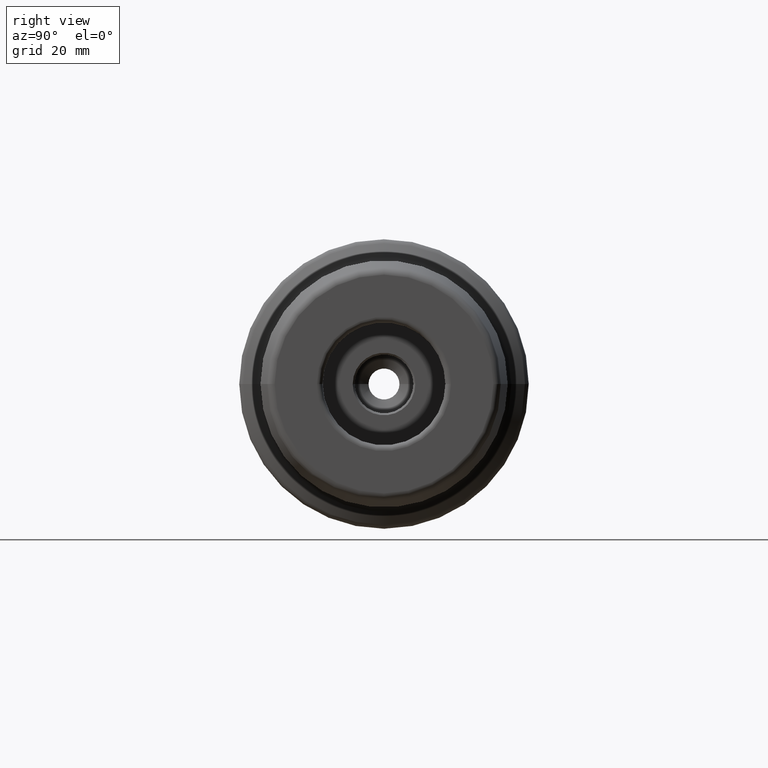
[diagram: clean part render]
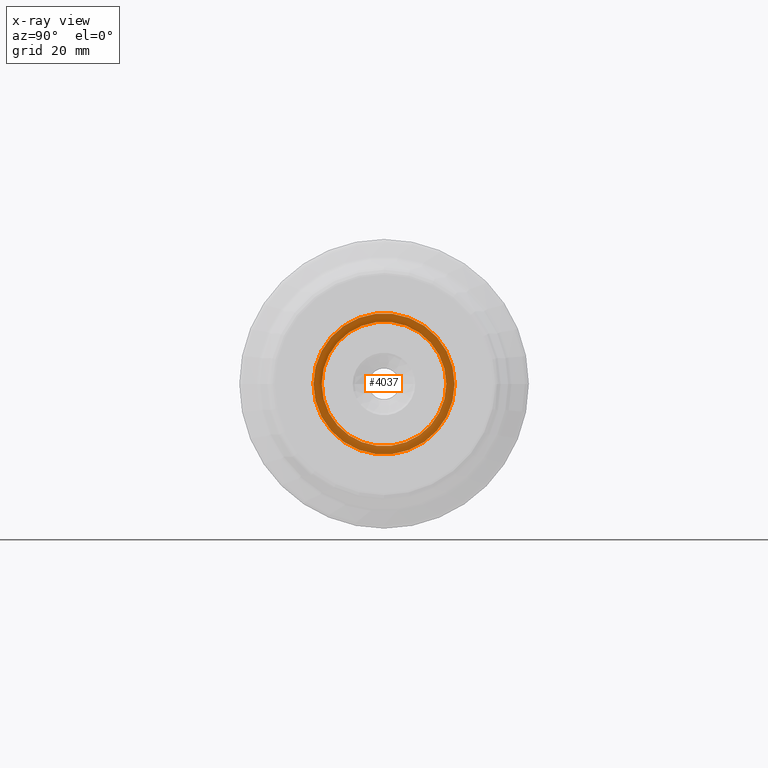
[diagram: x-ray — body ghosted, one internal face saturated and labeled with its STEP entity id]
A machine part, right view, then the same camera in x-ray: the body is ghosted and one INTERNAL B-rep face — a face not visible from any outside direction — is saturated and labeled: STEP entity #4037.
In plain terms, the highlighted planar face has unit normal (1, 0, 0).
Its self-contained STEP definition (entity closure, byte-faithful):
#423=CARTESIAN_POINT('',(2.599E0,0.E0,0.E0));
#424=DIRECTION('',(-1.E0,0.E0,0.E0));
#425=DIRECTION('',(0.E0,-1.E0,0.E0));
#426=AXIS2_PLACEMENT_3D('',#423,#424,#425);
#445=CARTESIAN_POINT('',(2.599E0,0.E0,0.E0));
#446=DIRECTION('',(-1.E0,0.E0,0.E0));
#447=DIRECTION('',(0.E0,1.E0,0.E0));
#448=AXIS2_PLACEMENT_3D('',#445,#446,#447);
#454=CARTESIAN_POINT('',(2.599E0,0.E0,0.E0));
#455=DIRECTION('',(1.E0,0.E0,0.E0));
#456=DIRECTION('',(0.E0,1.E0,0.E0));
#457=AXIS2_PLACEMENT_3D('',#454,#455,#456);
#469=CARTESIAN_POINT('',(2.599E0,0.E0,0.E0));
#470=DIRECTION('',(-1.E0,0.E0,0.E0));
#471=DIRECTION('',(0.E0,1.E0,0.E0));
#472=AXIS2_PLACEMENT_3D('',#469,#470,#471);
#3456=CARTESIAN_POINT('',(2.599E0,7.2E-1,0.E0));
#3458=VERTEX_POINT('',#3456);
#3460=CARTESIAN_POINT('',(2.599E0,-7.2E-1,0.E0));
#3462=VERTEX_POINT('',#3460);
#3464=CARTESIAN_POINT('',(2.599E0,-6.35E-1,0.E0));
#3465=CARTESIAN_POINT('',(2.599E0,6.35E-1,0.E0));
#3466=VERTEX_POINT('',#3464);
#3467=VERTEX_POINT('',#3465);
#4021=CARTESIAN_POINT('',(2.599E0,0.E0,0.E0));
#4022=DIRECTION('',(1.E0,0.E0,0.E0));
#4023=DIRECTION('',(0.E0,-1.E0,0.E0));
#4024=AXIS2_PLACEMENT_3D('',#4021,#4022,#4023);
#4025=PLANE('',#4024);
#4027=ORIENTED_EDGE('',*,*,#4026,.F.);
#4029=ORIENTED_EDGE('',*,*,#4028,.T.);
#4030=EDGE_LOOP('',(#4027,#4029));
#4031=FACE_OUTER_BOUND('',#4030,.F.);
#4032=ORIENTED_EDGE('',*,*,#3995,.T.);
#4034=ORIENTED_EDGE('',*,*,#4033,.T.);
#4035=EDGE_LOOP('',(#4032,#4034));
#4036=FACE_BOUND('',#4035,.F.);
#4037=ADVANCED_FACE('',(#4031,#4036),#4025,.F.);
#427=CIRCLE('',#426,6.35E-1);
#449=CIRCLE('',#448,7.2E-1);
#458=CIRCLE('',#457,7.2E-1);
#473=CIRCLE('',#472,6.35E-1);
#3995=EDGE_CURVE('',#3466,#3467,#427,.T.);
#4026=EDGE_CURVE('',#3458,#3462,#449,.T.);
#4028=EDGE_CURVE('',#3458,#3462,#458,.T.);
#4033=EDGE_CURVE('',#3467,#3466,#473,.T.);